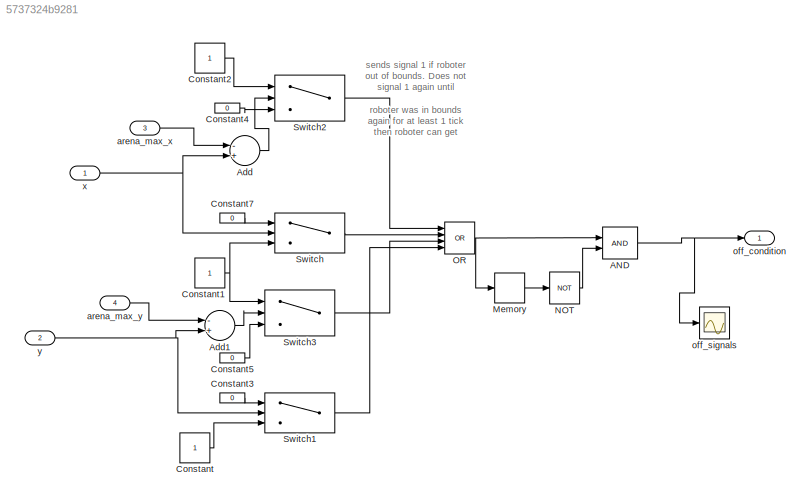
MODEL slx_5737324b9281
KIND model
CONFIG AbsTol = auto
CONFIG EnableMultiTasking = off
CONFIG FixedStep = 0.01
CONFIG MaxStep = auto
CONFIG MinStep = auto
CONFIG RelTol = 1e-3
CONFIG SampleTimeConstraint = Unconstrained
CONFIG Solver = VariableStepAuto
CONFIG SolverName = VariableStepAuto
CONFIG StartTime = 0.0
CONFIG StopTime = 100
BLOCK [Logic] AND
  AllPortsSameDT = off
  IconShape = distinctive
  OutDataTypeStr = boolean
  Ports = [2, 1]
BLOCK [Sum] Add
  InputSameDT = off
  Inputs = -+
  OutDataTypeStr = Inherit: Inherit via internal rule
  Ports = [2, 1]
  SaturateOnIntegerOverflow = off
BLOCK [Sum] Add1
  InputSameDT = off
  Inputs = -+
  OutDataTypeStr = Inherit: Inherit via internal rule
  Ports = [2, 1]
  SaturateOnIntegerOverflow = off
BLOCK [Constant] Constant
BLOCK [Constant] Constant1
BLOCK [Constant] Constant2
BLOCK [Constant] Constant3
  Value = 0
BLOCK [Constant] Constant4
  Value = 0
BLOCK [Constant] Constant5
  Value = 0
BLOCK [Constant] Constant7
  Value = 0
BLOCK [Memory] Memory
BLOCK [Logic] NOT
  AllPortsSameDT = off
  IconShape = distinctive
  Operator = NOT
  OutDataTypeStr = boolean
  Ports = [1, 1]
BLOCK [Logic] OR
  AllPortsSameDT = off
  IconShape = distinctive
  Inputs = 4
  Operator = OR
  OutDataTypeStr = boolean
  Ports = [4, 1]
BLOCK [Switch] Switch
  InputSameDT = off
  SaturateOnIntegerOverflow = off
  Threshold = -4
BLOCK [Switch] Switch1
  InputSameDT = off
  SaturateOnIntegerOverflow = off
  Threshold = -4
BLOCK [Switch] Switch2
  InputSameDT = off
  SaturateOnIntegerOverflow = off
  Threshold = 4
BLOCK [Switch] Switch3
  InputSameDT = off
  SaturateOnIntegerOverflow = off
  Threshold = 4
BLOCK [Inport] arena_max_x 
  IconDisplay = Port number
  Port = 3
BLOCK [Inport] arena_max_y
  IconDisplay = Port number
  Port = 4
BLOCK [Outport] off_condition
  IconDisplay = Port number
BLOCK [Scope] off_signals
  Floating = off
  NumInputPorts = 1
  Ports = [1]
  ScopeSpecificationString = Simulink.scopes.TimeScopeBlockCfg('CurrentConfiguration', extmgr.ConfigurationSet(extmgr.Configuration('Core','General UI',true),extmgr.Configuration('Core','Source UI',true),extmgr.Configuration('Sources','WiredSimulink',true),extmgr.Configuration('Visuals','Time Domain',true,'SerializedDisplays',{struct('MinYLimReal','-0.125','MaxYLimReal','1.125','YLabelReal','','MinYLimMag','0.00000','MaxYLimM...<+1311ch>
BLOCK [Inport] x
  IconDisplay = Port number
BLOCK [Inport] y
  IconDisplay = Port number
  Port = 2
ANNOTATION (root): sends signal 1 if roboter out of bounds. Does not signal 1 again until roboter was in bounds again for at least 1 tick then roboter can get punished again for driving out of bounds.
NET AND:1 -> off_condition:1, off_signals:1
LINE Add1:1 -> Switch3:2
LINE Add:1 -> Switch2:2
NET Constant1:1 -> Switch3:1, Switch:3
LINE Constant2:1 -> Switch2:1
LINE Constant3:1 -> Switch1:1
LINE Constant4:1 -> Switch2:3
LINE Constant5:1 -> Switch3:3
LINE Constant7:1 -> Switch:1
LINE Constant:1 -> Switch1:3
LINE Memory:1 -> NOT:1
LINE NOT:1 -> AND:2
NET OR:1 -> AND:1, Memory:1
LINE Switch1:1 -> OR:4
LINE Switch2:1 -> OR:1
LINE Switch3:1 -> OR:3
LINE Switch:1 -> OR:2
LINE arena_max_x :1 -> Add:1
LINE arena_max_y:1 -> Add1:1
NET x:1 -> Add:2, Switch:2
NET y:1 -> Add1:2, Switch1:2
note: NET lines group one-source signal fan-out (src -> all destinations, sorted); 1:1 wires keep LINE
